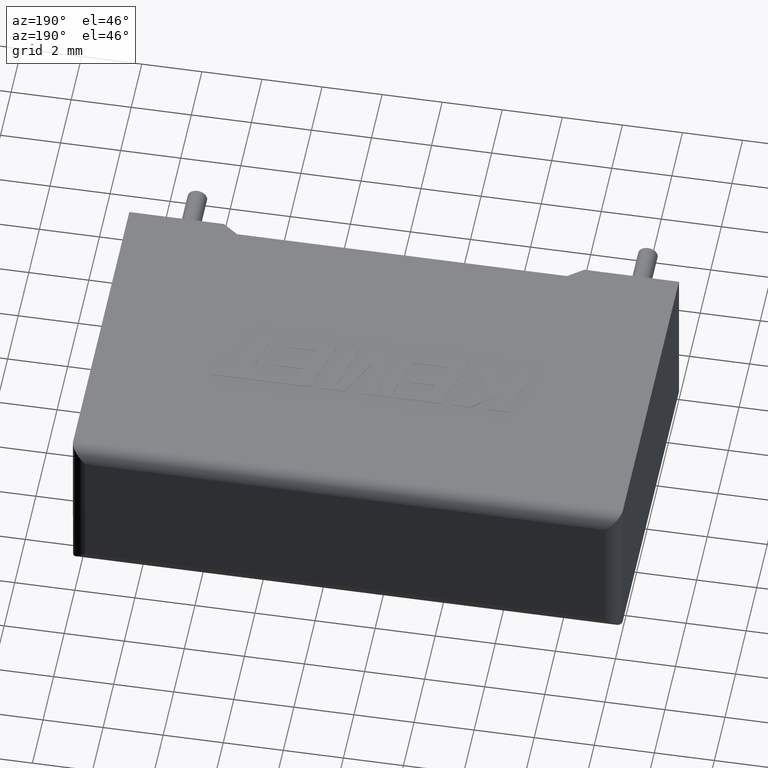
[diagram: clean part render]
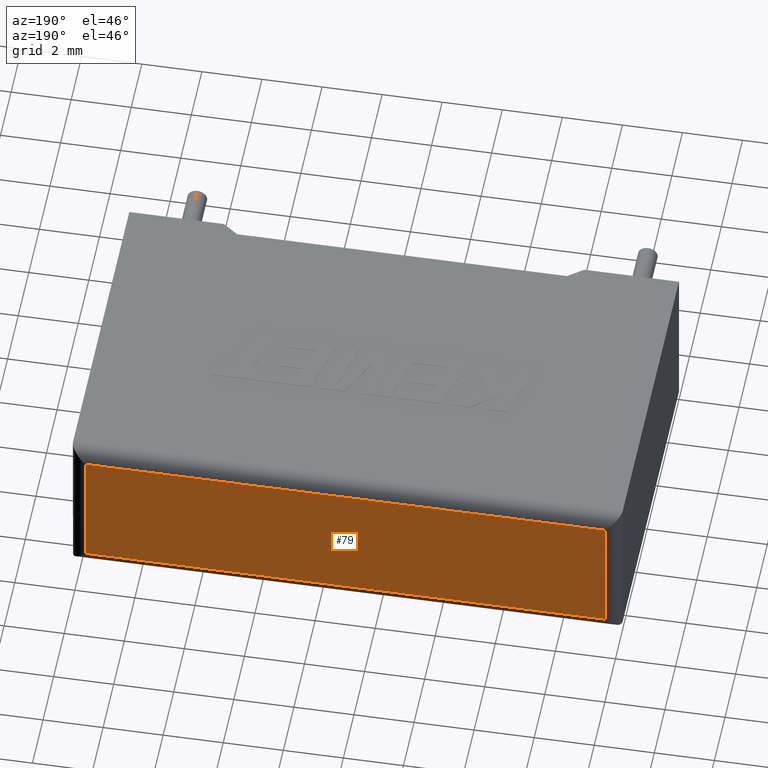
[diagram: same view with one face highlighted and labeled with its STEP entity id]
A machine part, auxiliary view. The second image highlights one B-rep face of the part: STEP entity #79.
In plain terms, the highlighted planar face has unit normal (0, -1, 0).
Its self-contained STEP definition (entity closure, byte-faithful):
#79 = ADVANCED_FACE ( 'NONE', ( #1129 ), #2734, .F. ) ;
#93 = EDGE_CURVE ( 'NONE', #2993, #411, #2074, .T. ) ;
#116 = VECTOR ( 'NONE', #2579, 1000.000000000000000 ) ;
#165 = CARTESIAN_POINT ( 'NONE',  ( 0.5000000000000000000, 11.09999999999999964, 4.699999999999999289 ) ) ;
#234 = ORIENTED_EDGE ( 'NONE', *, *, #1826, .T. ) ;
#401 = ORIENTED_EDGE ( 'NONE', *, *, #484, .T. ) ;
#411 = VERTEX_POINT ( 'NONE', #1185 ) ;
#484 = EDGE_CURVE ( 'NONE', #411, #2606, #2894, .T. ) ;
#491 = DIRECTION ( 'NONE',  ( -0.000000000000000000, -0.000000000000000000, 1.000000000000000000 ) ) ;
#627 = LINE ( 'NONE', #686, #1016 ) ;
#686 = CARTESIAN_POINT ( 'NONE',  ( 0.000000000000000000, 11.09999999999999964, 4.699999999999999289 ) ) ;
#713 = CARTESIAN_POINT ( 'NONE',  ( 17.80000000000000071, 11.09999999999999964, 5.200000000000000178 ) ) ;
#781 = CARTESIAN_POINT ( 'NONE',  ( 0.5000000000000000000, 11.09999999999999964, 5.200000000000000178 ) ) ;
#805 = EDGE_LOOP ( 'NONE', ( #2222, #401, #996, #234 ) ) ;
#910 = CARTESIAN_POINT ( 'NONE',  ( 0.000000000000000000, 11.09999999999999964, 5.200000000000000178 ) ) ;
#996 = ORIENTED_EDGE ( 'NONE', *, *, #1634, .T. ) ;
#1016 = VECTOR ( 'NONE', #2055, 1000.000000000000000 ) ;
#1129 = FACE_OUTER_BOUND ( 'NONE', #805, .T. ) ;
#1140 = DIRECTION ( 'NONE',  ( -1.000000000000000000, 0.000000000000000000, 0.000000000000000000 ) ) ;
#1185 = CARTESIAN_POINT ( 'NONE',  ( 0.5000000000000000000, 11.09999999999999964, 0.5000000000000004441 ) ) ;
#1242 = LINE ( 'NONE', #713, #116 ) ;
#1384 = CARTESIAN_POINT ( 'NONE',  ( 0.000000000000000000, 11.09999999999999964, 0.5000000000000004441 ) ) ;
#1634 = EDGE_CURVE ( 'NONE', #2606, #2022, #627, .T. ) ;
#1802 = AXIS2_PLACEMENT_3D ( 'NONE', #910, #2117, #2809 ) ;
#1826 = EDGE_CURVE ( 'NONE', #2022, #2993, #1242, .T. ) ;
#1897 = VECTOR ( 'NONE', #1140, 1000.000000000000000 ) ;
#1947 = VECTOR ( 'NONE', #491, 1000.000000000000000 ) ;
#2022 = VERTEX_POINT ( 'NONE', #2766 ) ;
#2046 = CARTESIAN_POINT ( 'NONE',  ( 17.80000000000000071, 11.09999999999999964, 0.5000000000000004441 ) ) ;
#2055 = DIRECTION ( 'NONE',  ( 1.000000000000000000, -0.000000000000000000, -0.000000000000000000 ) ) ;
#2074 = LINE ( 'NONE', #1384, #1897 ) ;
#2117 = DIRECTION ( 'NONE',  ( 0.000000000000000000, -1.000000000000000000, 0.000000000000000000 ) ) ;
#2222 = ORIENTED_EDGE ( 'NONE', *, *, #93, .T. ) ;
#2579 = DIRECTION ( 'NONE',  ( 0.000000000000000000, 0.000000000000000000, -1.000000000000000000 ) ) ;
#2606 = VERTEX_POINT ( 'NONE', #165 ) ;
#2734 = PLANE ( 'NONE',  #1802 ) ;
#2766 = CARTESIAN_POINT ( 'NONE',  ( 17.80000000000000071, 11.09999999999999964, 4.699999999999999289 ) ) ;
#2809 = DIRECTION ( 'NONE',  ( 0.000000000000000000, -0.000000000000000000, -1.000000000000000000 ) ) ;
#2894 = LINE ( 'NONE', #781, #1947 ) ;
#2993 = VERTEX_POINT ( 'NONE', #2046 ) ;